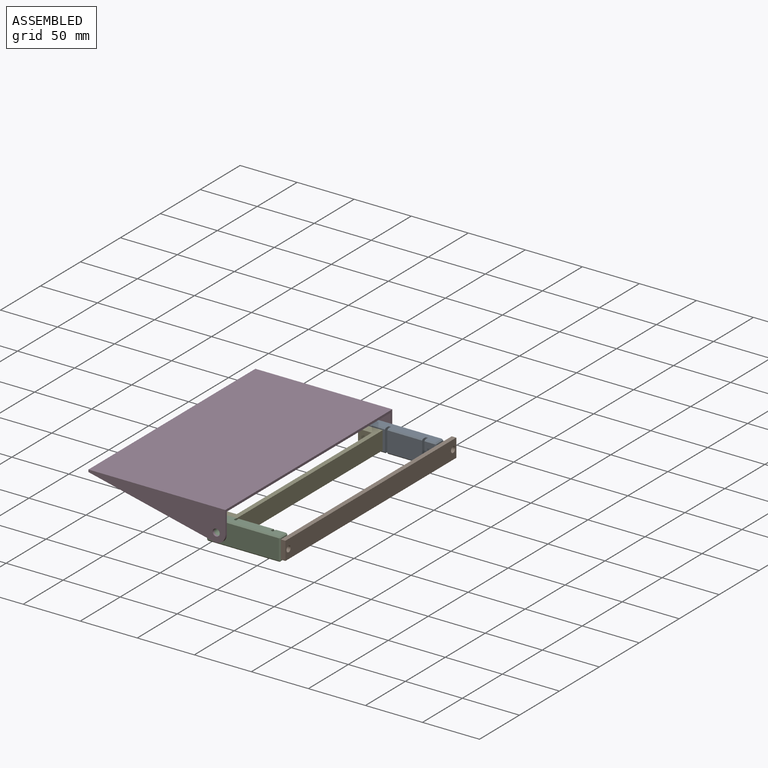
[diagram: assembled view]
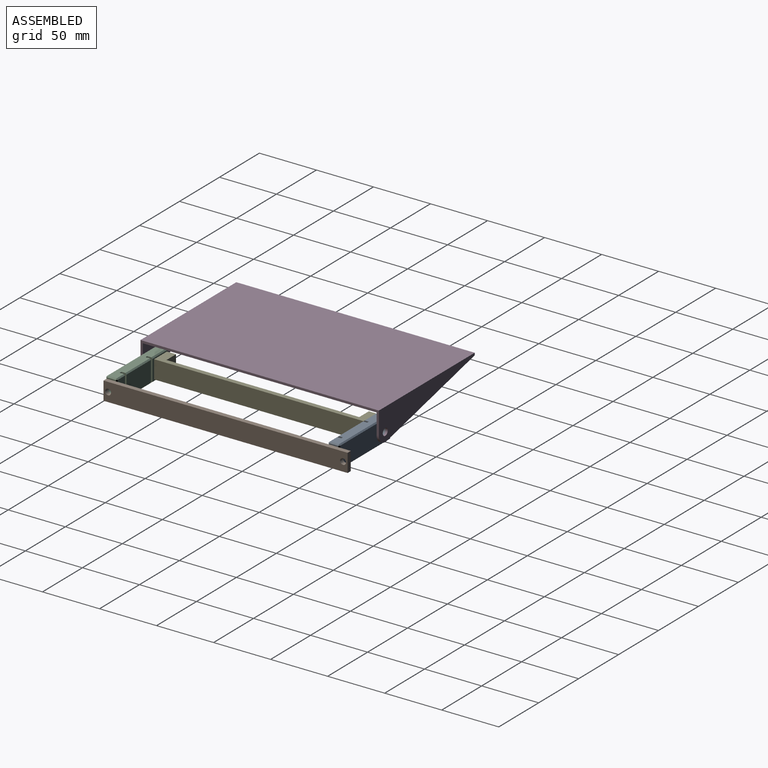
[diagram: assembled view, second angle]
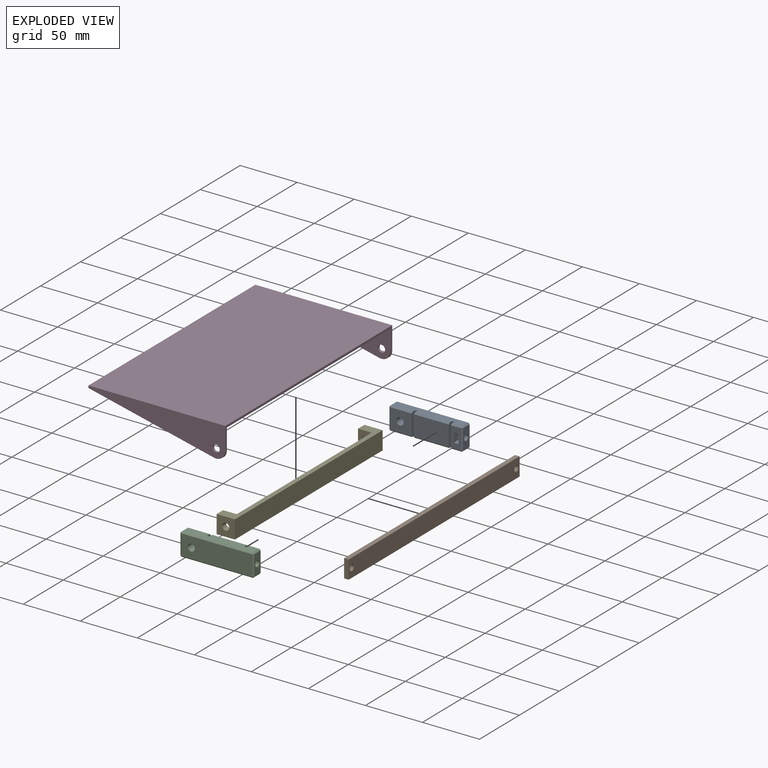
[diagram: exploded view]
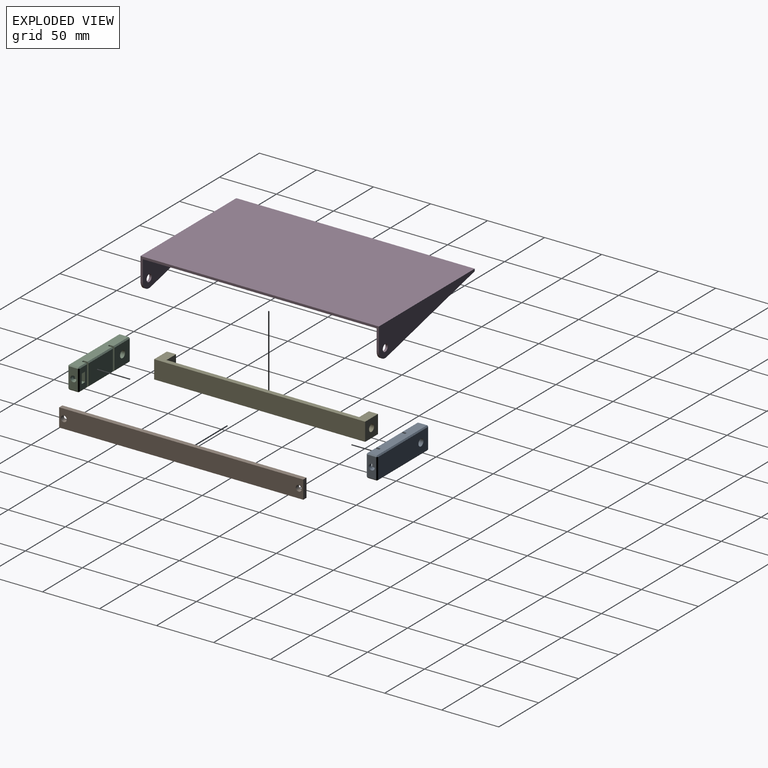
[diagram: exploded view, second angle]
ASSEMBLY  parts=5 mates=6
PART A: 47 faces, bbox 64.6x10x20 mm
  f0: plane 18x9mm, normal (0,1,0), area 127.6mm2, adj f11,f16,f19,f20,f40,f41,f42,f43
  f1: cylinder r=2.6mm len=5.2mm, axis (1,0,0), area 55.5mm2, adj f10,f41
  f2: plane 20x4.5mm, normal (1,0,0), area 89mm2, adj f3,f12,f13,f14,f38,f39
  f3: plane 30.5x18mm, normal (0,1,0), area 549mm2, adj f2,f4,f38,f39
  f4: plane 20x4.5mm, normal (-1,0,0), area 89mm2, adj f3,f5,f13,f14,f38,f39
  f5: plane 20x2mm, normal (0,1,0), area 40mm2, adj f4,f6,f13,f14
  f6: plane 20x4.5mm, normal (1,0,0), area 89mm2, adj f5,f7,f13,f14,f28,f37
  f7: plane 19.1x18mm, normal (0,1,0), area 313.6mm2, adj f6,f15,f28,f34,f37
  f8: plane 18x8mm, normal (-1,0,0), area 144mm2, adj f29,f30,f34,f35
  f9: plane 62.6x18mm, normal (0,-1,0), area 1096.6mm2, adj f15,f23,f24,f30,f31
  f10: plane 18x8mm, normal (1,0,0), area 122.8mm2, adj f1,f18,f19,f24,f25
  f11: plane 20x4.5mm, normal (-1,0,0), area 89mm2, adj f0,f12,f13,f14,f16,f20
  f12: plane 20x2mm, normal (0,1,0), area 40mm2, adj f2,f11,f13,f14
  f13: plane 62.6x8mm, normal (0,0,1), area 486.8mm2, adj f2,f4,f5,f6,f11,f12,f16,f18
  f14: plane 62.6x8mm, normal (0,0,-1), area 486.8mm2, adj f2,f4,f5,f6,f11,f12,f20,f25
  f15: cylinder r=3.1mm len=10mm, axis (0,1,0), area 194.8mm2, adj f7,f9
  f16: plane 9x1mm, normal (0,0.71,0.71), area 12.7mm2, adj f0,f11,f13,f17
  f17: plane 1x1mm, normal (0.58,0.58,0.58), area 0.9mm2, adj f16,f18,f19
  f18: plane 8x1mm, normal (0.71,0,0.71), area 11.3mm2, adj f10,f13,f17,f21
  f19: plane 18x1mm, normal (0.71,0.71,0), area 25.5mm2, adj f0,f10,f17,f22
  f20: plane 9x1mm, normal (0,0.71,-0.71), area 12.7mm2, adj f0,f11,f14,f22
  f21: plane 1x1mm, normal (0.58,-0.58,0.58), area 0.9mm2, adj f18,f23,f24
  f22: plane 1x1mm, normal (0.58,0.58,-0.58), area 0.9mm2, adj f19,f20,f25
  f23: plane 62.6x1mm, normal (0,-0.71,0.71), area 88.5mm2, adj f9,f13,f21,f26
  f24: plane 18x1mm, normal (0.71,-0.71,0), area 25.5mm2, adj f9,f10,f21,f27
  f25: plane 8x1mm, normal (0.71,0,-0.71), area 11.3mm2, adj f10,f14,f22,f27
  f26: plane 1x1mm, normal (-0.58,-0.58,0.58), area 0.9mm2, adj f23,f29,f30
  f27: plane 1x1mm, normal (0.58,-0.58,-0.58), area 0.9mm2, adj f24,f25,f31
  f28: plane 19.1x1mm, normal (0,0.71,0.71), area 27mm2, adj f6,f7,f13,f32
  f29: plane 8x1mm, normal (-0.71,0,0.71), area 11.3mm2, adj f8,f13,f26,f32
  f30: plane 18x1mm, normal (-0.71,-0.71,0), area 25.5mm2, adj f8,f9,f26,f33
  f31: plane 62.6x1mm, normal (0,-0.71,-0.71), area 88.5mm2, adj f9,f14,f27,f33
  f32: plane 1x1mm, normal (-0.58,0.58,0.58), area 0.9mm2, adj f28,f29,f34
  f33: plane 1x1mm, normal (-0.58,-0.58,-0.58), area 0.9mm2, adj f30,f31,f35
  f34: plane 18x1mm, normal (-0.71,0.71,0), area 25.5mm2, adj f7,f8,f32,f36
  f35: plane 8x1mm, normal (-0.71,0,-0.71), area 11.3mm2, adj f8,f14,f33,f36
  f36: plane 1x1mm, normal (-0.58,0.58,-0.58), area 0.9mm2, adj f34,f35,f37
  f37: plane 19.1x1mm, normal (0,0.71,-0.71), area 27mm2, adj f6,f7,f14,f36
  f38: plane 30.5x1mm, normal (0,0.71,-0.71), area 43.1mm2, adj f2,f3,f4,f14
  f39: plane 30.5x1mm, normal (0,0.71,0.71), area 43.1mm2, adj f2,f3,f4,f13
  f40: plane 9x8.2mm, normal (1,0,0), area 52.6mm2, adj f0,f42,f43,f44,f46
  f41: plane 9x8.2mm, normal (-1,0,0), area 52.6mm2, adj f0,f1,f42,f43,f44
  f42: plane 9x4.2mm, normal (0,0,1), area 37.8mm2, adj f0,f40,f41,f44
  f43: plane 9x4.2mm, normal (0,0,-1), area 37.8mm2, adj f0,f40,f41,f44
  f44: plane 8.2x4.2mm, normal (0,1,0), area 34.4mm2, adj f40,f41,f42,f43
  f45: plane 5.2x5.2mm, normal (1,0,0), area 21.2mm2, adj f46
  f46: cylinder r=2.6mm len=5.2mm, axis (1,0,0), area 6.5mm2, adj f40,f45
PART B: 8 faces, bbox 214x16x4 mm
  f0: plane 214x4mm, normal (0,-1,0), area 856mm2, adj f1,f3,f4,f5
  f1: plane 16x4mm, normal (1,0,0), area 64mm2, adj f0,f2,f4,f5
  f2: plane 214x4mm, normal (0,1,0), area 856mm2, adj f1,f3,f4,f5
  f3: plane 16x4mm, normal (-1,0,0), area 64mm2, adj f0,f2,f4,f5
  f4: plane 214x16mm, normal (0,0,1), area 3381.5mm2, adj f0,f1,f2,f3,f6,f7
  f5: plane 214x16mm, normal (0,0,-1), area 3381.5mm2, adj f0,f1,f2,f3,f6,f7
  f6: cylinder r=2.6mm len=5.2mm, axis (0,0,-1), area 65.3mm2, adj f4,f5
  f7: cylinder r=2.6mm len=5.2mm, axis (0,0,-1), area 65.3mm2, adj f4,f5
PART C: same geometry as A
PART D: 14 faces, bbox 209x120x28 mm
  f0: plane 209x2mm, normal (0,-1,0), area 418mm2, adj f2,f5,f6,f7,f10,f13
  f1: plane 209x20mm, normal (0,1,0), area 490mm2, adj f2,f3,f4,f5,f6,f7,f11,f12
  f2: plane 120x28mm, normal (-1,0,0), area 1872.1mm2, adj f0,f1,f7,f8,f10,f11
  f3: plane 120x26mm, normal (-1,0,0), area 1632.1mm2, adj f1,f5,f9,f12,f13
  f4: plane 120x26mm, normal (1,0,0), area 1632.1mm2, adj f1,f5,f8,f10,f11
  f5: plane 205x120mm, normal (0,0,-1), area 24600mm2, adj f0,f1,f3,f4
  f6: plane 120x28mm, normal (1,0,0), area 1872.1mm2, adj f0,f1,f7,f9,f12,f13
  f7: plane 209x120mm, normal (0,0,1), area 25080mm2, adj f0,f1,f2,f6
  f8: cylinder r=3.1mm len=6.2mm, axis (1,0,0), area 39mm2, adj f2,f4
  f9: cylinder r=3.1mm len=6.2mm, axis (1,0,0), area 39mm2, adj f3,f6
  f10: plane 110.18x25.79mm, normal (0,-0.23,-0.97), area 226.3mm2, adj f0,f2,f4,f11
  f11: cylinder r=8mm len=9.82mm, axis (1,0,0), area 28.8mm2, adj f1,f2,f4,f10
  f12: cylinder r=8mm len=9.82mm, axis (1,0,0), area 28.8mm2, adj f1,f3,f6,f13
  f13: plane 110.18x25.79mm, normal (0,-0.23,-0.97), area 226.3mm2, adj f0,f3,f6,f12
PART E: 28 faces, bbox 185x16x16 mm
  f0: cylinder r=3.1mm len=6.2mm, axis (1,0,0), area 77.9mm2, adj f4,f20
  f1: cylinder r=3.1mm len=6.2mm, axis (1,0,0), area 77.9mm2, adj f6,f15
  f2: plane 169x16mm, normal (0,0,1), area 2646.7mm2, adj f3,f5,f8,f10,f16,f17,f19,f21
  f3: plane 185x16mm, normal (0,1,0), area 932mm2, adj f2,f4,f6,f7,f8,f9,f10,f11
  f4: plane 16x16mm, normal (-1,0,0), area 225.8mm2, adj f0,f3,f5,f7,f9
  f5: plane 185x16mm, normal (0,-1,0), area 932mm2, adj f2,f4,f6,f7,f8,f9,f10,f11
  f6: plane 16x16mm, normal (1,0,0), area 225.8mm2, adj f1,f3,f5,f7,f11
  f7: plane 185x16mm, normal (0,0,-1), area 2960mm2, adj f3,f4,f5,f6
  f8: plane 16x12mm, normal (1,0,0), area 109.1mm2, adj f2,f3,f5,f9,f21,f22,f23,f24
  f9: plane 16x8mm, normal (0,0,1), area 128mm2, adj f3,f4,f5,f8
  f10: plane 16x12mm, normal (-1,0,0), area 109.1mm2, adj f2,f3,f5,f11,f12,f13,f14,f16
  f11: plane 16x8mm, normal (0,0,1), area 128mm2, adj f3,f5,f6,f10
  f12: plane 5.1x4mm, normal (0,0.87,-0.5), area 23.6mm2, adj f10,f13,f15,f16
  f13: plane 5.89x4mm, normal (0,0,-1), area 23.6mm2, adj f10,f12,f14,f15
  f14: plane 5.1x4mm, normal (0,-0.87,-0.5), area 23.6mm2, adj f10,f13,f15,f17
  f15: plane 11.78x10.2mm, normal (-1,0,0), area 59.9mm2, adj f1,f12,f13,f14,f16,f17,f18
  f16: plane 8x5.1mm, normal (0,0.87,0.5), area 28.6mm2, adj f2,f10,f12,f15,f18,f19
  f17: plane 8x5.1mm, normal (0,-0.87,0.5), area 28.6mm2, adj f2,f10,f14,f15,f18,f19
  f18: plane 8x5.89mm, normal (0,0,1), area 47.1mm2, adj f15,f16,f17,f19
  f19: plane 7.16x1.1mm, normal (1,0,0), area 7.2mm2, adj f2,f16,f17,f18
  f20: plane 11.78x10.2mm, normal (1,0,0), area 59.9mm2, adj f0,f21,f22,f23,f24,f25,f26
  f21: plane 8x5.1mm, normal (0,-0.87,0.5), area 28.6mm2, adj f2,f8,f20,f22,f26,f27
  f22: plane 5.1x4mm, normal (0,-0.87,-0.5), area 23.6mm2, adj f8,f20,f21,f23
  f23: plane 5.89x4mm, normal (0,0,-1), area 23.6mm2, adj f8,f20,f22,f24
  f24: plane 5.1x4mm, normal (0,0.87,-0.5), area 23.6mm2, adj f8,f20,f23,f25
  f25: plane 8x5.1mm, normal (0,0.87,0.5), area 28.6mm2, adj f2,f8,f20,f24,f26,f27
  f26: plane 8x5.89mm, normal (0,0,1), area 47.1mm2, adj f20,f21,f25,f27
  f27: plane 7.16x1.1mm, normal (-1,0,0), area 7.2mm2, adj f2,f21,f25,f26
PLACE A rot(axis=(1,0,0),180deg) t=(-5.9,213.25,24.9)mm
PLACE B rot(axis=(0.58,-0.58,-0.58),120deg) t=(19.72,114.28,14.9)mm
PLACE C t=(-5.9,4.32,4.9)mm
PLACE D rot(axis=(0,0,-1),90deg) t=(-90.83,108.78,32.9)mm
PLACE E rot(axis=(0.58,-0.58,-0.58),120deg) t=(-30.83,201.28,22.9)mm
MATE slider D.f8 <-> C.f15  axis (0,1,0) through (-38.83,6.28,14.9)mm
MATE slider C.f15 <-> E.f0  axis (0,1,0) through (-38.83,16.28,14.9)mm
MATE slider E.f0 <-> C.f15  axis (0,-1,0) through (-38.83,16.28,14.9)mm
MATE slider D.f8 <-> C.f15  axis (0,1,0) through (-38.83,6.28,14.9)mm
MATE slider B.f4 <-> C.f10  axis (-1,0,0) through (15.72,7.28,14.9)mm
MATE slider A.f15 <-> E.f0  axis (0,-1,0) through (-38.83,201.28,14.9)mm
